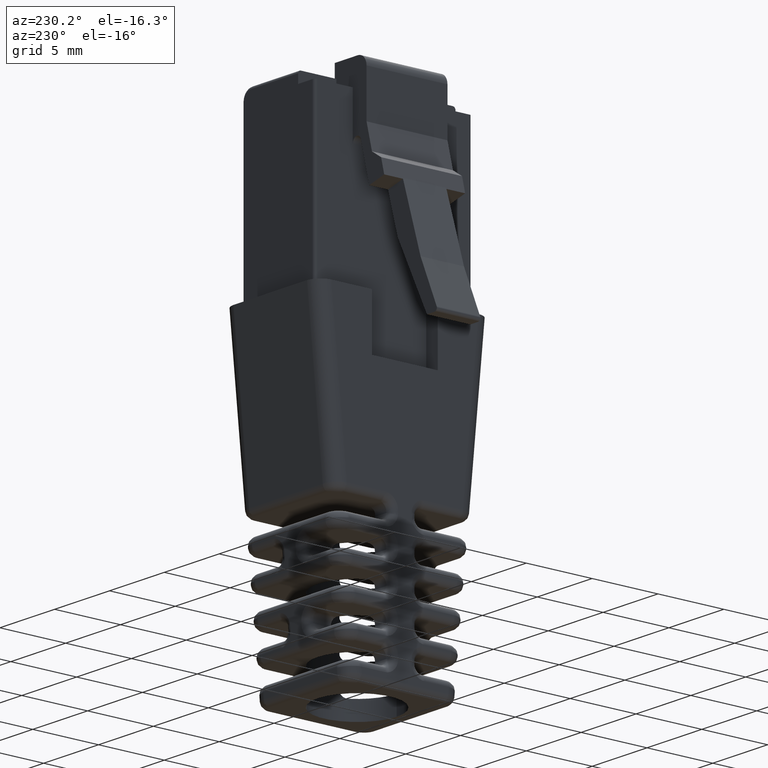
[diagram: clean part render]
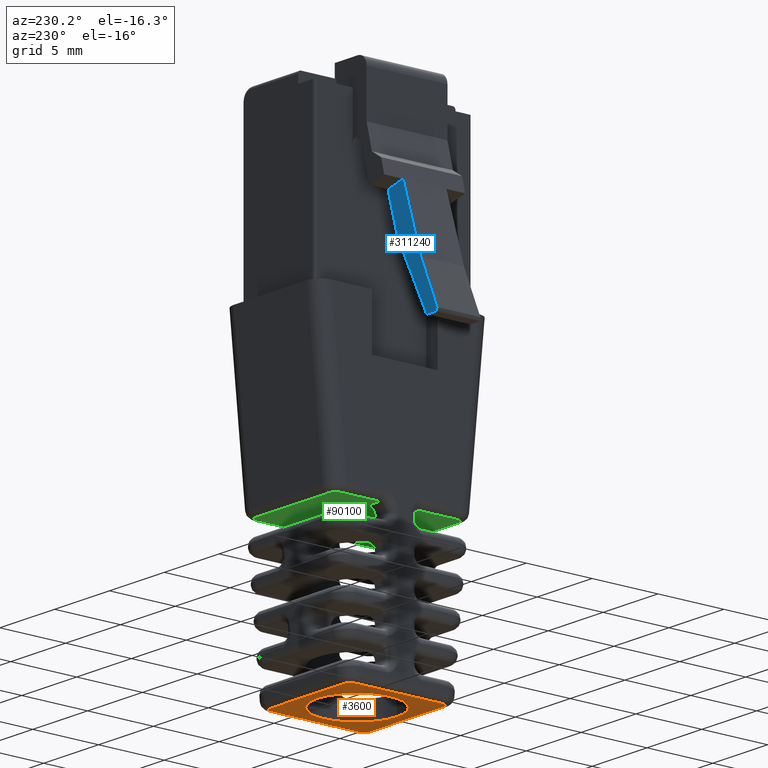
[diagram: same view with three faces highlighted in distinct colors, each labeled with its STEP entity id]
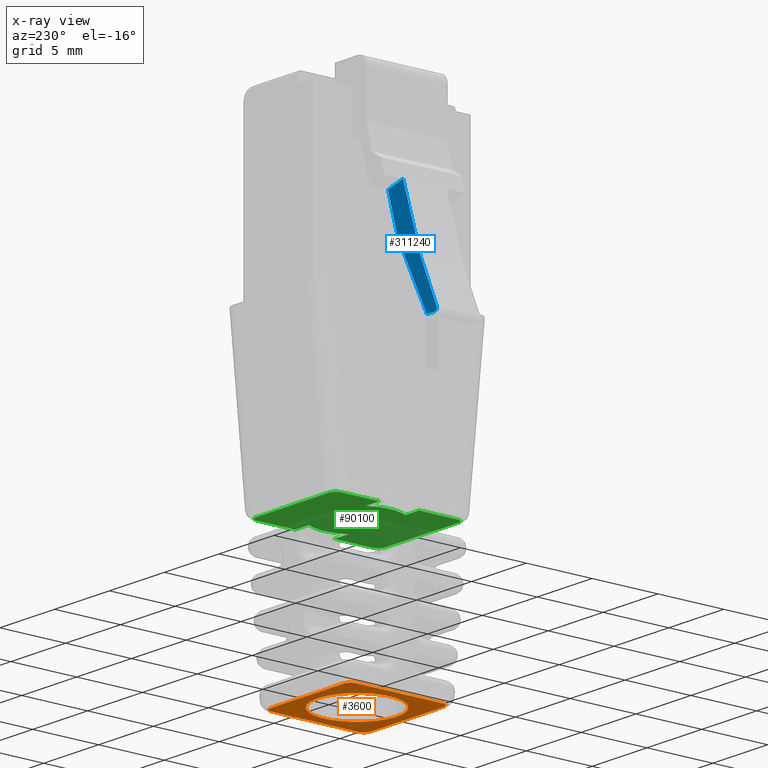
[diagram: x-ray of the same camera — body ghosted, the three highlighted faces saturated]
A machine part, auxiliary view with three faces highlighted in distinct colors.
The next image is the same camera in x-ray (body ghosted, the three faces saturated) — at least one of them is partly hidden behind the body in this view.
Their STEP definitions:

[orange] entity #3600 — the highlighted planar face has unit normal (0, -0, -1).
#2020=CARTESIAN_POINT('',(0.,0.,24.));
#2030=DIRECTION('',(0.,0.,1.));
#2040=DIRECTION('',(1.,0.,0.));
#2050=AXIS2_PLACEMENT_3D('',#2020,#2030,#2040);
#2060=PLANE('',#2050);
#2070=CARTESIAN_POINT('',(11.4281426136379,4.61886962969767,24.));
#2080=DIRECTION('',(0.,0.,1.));
#2090=DIRECTION('',(1.,0.,0.));
#2100=AXIS2_PLACEMENT_3D('',#2070,#2080,#2090);
#2110=CIRCLE('',#2100,3.);
#2120=CARTESIAN_POINT('',(14.4281426136379,4.61886962969767,24.));
#2130=VERTEX_POINT('',#2120);
#2140=CARTESIAN_POINT('',(8.42814261363791,4.61886962969767,24.));
#2150=VERTEX_POINT('',#2140);
#2160=EDGE_CURVE('',#2130,#2150,#2110,.T.);
#2170=ORIENTED_EDGE('',*,*,#2160,.F.);
#2180=EDGE_CURVE('',#2150,#2130,#2110,.T.);
#2190=ORIENTED_EDGE('',*,*,#2180,.F.);
#2200=EDGE_LOOP('',(#2190,#2170));
#2210=FACE_BOUND('',#2200,.T.);
#2220=CARTESIAN_POINT('',(7.63157548086723,0.,24.));
#2230=DIRECTION('',(0.,-1.,0.));
#2240=VECTOR('',#2230,1.);
#2250=LINE('',#2220,#2240);
#2260=CARTESIAN_POINT('',(7.63157548086723,7.96886962969767,24.));
#2270=VERTEX_POINT('',#2260);
#2280=CARTESIAN_POINT('',(7.63157548086723,1.26886962969767,24.));
#2290=VERTEX_POINT('',#2280);
#2300=EDGE_CURVE('',#2270,#2290,#2250,.T.);
#2310=ORIENTED_EDGE('',*,*,#2300,.T.);
#2320=CARTESIAN_POINT('',(8.13396668142988,8.46886962969767,24.));
#2330=CARTESIAN_POINT('',(8.11820719484784,8.46886962941029,24.));
#2340=CARTESIAN_POINT('',(8.10245585365113,8.46813155978695,24.));
#2350=CARTESIAN_POINT('',(8.08155434936782,8.46616850661825,24.));
#2360=CARTESIAN_POINT('',(8.07634860347011,8.4655977968666,24.));
#2370=CARTESIAN_POINT('',(8.02986953187484,8.45976823618118,24.));
#2380=CARTESIAN_POINT('',(7.98938373530583,8.44950476571241,24.));
#2390=CARTESIAN_POINT('',(7.89636692330433,8.41322020862494,24.));
#2400=CARTESIAN_POINT('',(7.84618768787502,8.38280374039244,24.));
#2410=CARTESIAN_POINT('',(7.80235873980915,8.3444764162071,24.));
#2420=CARTESIAN_POINT('',(7.77114986760287,8.31718503424851,24.));
#2430=CARTESIAN_POINT('',(7.74345317593471,8.28613834485792,24.));
#2440=CARTESIAN_POINT('',(7.69635489305031,8.21792343862533,24.));
#2450=CARTESIAN_POINT('',(7.67714194137829,8.18102133303213,24.));
#2460=CARTESIAN_POINT('',(7.64833650826421,8.10343662200296,24.));
#2470=CARTESIAN_POINT('',(7.63882988410064,8.0630724887373,24.));
#2480=CARTESIAN_POINT('',(7.63411982891316,8.01920558856994,24.));
#2490=CARTESIAN_POINT('',(7.63384377563335,8.01641202481174,24.));
#2500=CARTESIAN_POINT('',(7.63224809727464,7.99873842748319,24.));
#2510=CARTESIAN_POINT('',(7.63157547701211,7.98380811320723,24.));
#2520=CARTESIAN_POINT('',(7.63157548086723,7.96886962969767,24.));
#2530=B_SPLINE_CURVE_WITH_KNOTS('',3,(#2320,#2330,#2340,#2350,#2360,
#2370,#2380,#2390,#2400,#2410,#2420,#2430,#2440,#2450,#2460,#2470,#2480,
#2490,#2500,#2510,#2520),.UNSPECIFIED.,.F.,.F.,(4,2,2,2,3,2,2,2,2,4),(0.
,0.0706426140932112,0.0941072492122741,0.2804567932587,0.541420281636003
,0.72724184174419,0.913130795447704,1.0984738306326,1.11107123097296,
1.17812979283743),.UNSPECIFIED.);
#2540=CARTESIAN_POINT('',(8.13396668142988,8.46886962969767,24.));
#2550=VERTEX_POINT('',#2540);
#2560=EDGE_CURVE('',#2550,#2270,#2530,.T.);
#2570=ORIENTED_EDGE('',*,*,#2560,.T.);
#2580=CARTESIAN_POINT('',(0.,8.46886962969767,24.));
#2590=DIRECTION('',(-1.,0.,0.));
#2600=VECTOR('',#2590,1.);
#2610=LINE('',#2580,#2600);
#2620=CARTESIAN_POINT('',(14.722318545846,8.46886962969767,24.));
#2630=VERTEX_POINT('',#2620);
#2640=EDGE_CURVE('',#2630,#2550,#2610,.T.);
#2650=ORIENTED_EDGE('',*,*,#2640,.T.);
#2660=CARTESIAN_POINT('',(15.2247097464086,7.96886962969767,24.));
#2670=CARTESIAN_POINT('',(15.2247097502637,7.98380811320611,24.));
#2680=CARTESIAN_POINT('',(15.2240371300013,7.99873842748094,24.));
#2690=CARTESIAN_POINT('',(15.2224414516424,8.0164120248129,24.));
#2700=CARTESIAN_POINT('',(15.2221653983621,8.01920558857561,24.));
#2710=CARTESIAN_POINT('',(15.2174553431732,8.06307248874739,24.));
#2720=CARTESIAN_POINT('',(15.2079487190089,8.10343662201286,24.));
#2730=CARTESIAN_POINT('',(15.1791432858938,8.18102133303983,24.));
#2740=CARTESIAN_POINT('',(15.159930334222,8.2179234386312,24.));
#2750=CARTESIAN_POINT('',(15.1128320513388,8.28613834486049,24.));
#2760=CARTESIAN_POINT('',(15.0851353596717,8.31718503424965,24.));
#2770=CARTESIAN_POINT('',(15.0539264874667,8.3444764162071,24.));
#2780=CARTESIAN_POINT('',(15.0100975393982,8.38280374039473,24.));
#2790=CARTESIAN_POINT('',(14.9599183039655,8.41322020862856,24.));
#2800=CARTESIAN_POINT('',(14.86690149196,8.44950476571537,24.));
#2810=CARTESIAN_POINT('',(14.8264156953908,8.45976823618331,24.));
#2820=CARTESIAN_POINT('',(14.7799366237754,8.4655977968703,24.));
#2830=CARTESIAN_POINT('',(14.7747308778575,8.46616850662373,24.));
#2840=CARTESIAN_POINT('',(14.7538293735773,8.46813155978917,24.));
#2850=CARTESIAN_POINT('',(14.7380780324043,8.46886962941251,24.));
#2860=CARTESIAN_POINT('',(14.722318545846,8.46886962969767,24.));
#2870=B_SPLINE_CURVE_WITH_KNOTS('',3,(#2660,#2670,#2680,#2690,#2700,
#2710,#2720,#2730,#2740,#2750,#2760,#2770,#2780,#2790,#2800,#2810,#2820,
#2830,#2840,#2850,#2860),.UNSPECIFIED.,.F.,.F.,(4,2,2,2,2,3,2,2,2,4),(0.
,0.0670585618594444,0.0796559622201674,0.264998997405034,
0.450887951100811,0.636709511201264,0.897672999594067,1.0840225436404,
1.10748717885016,1.17812979283741),.UNSPECIFIED.);
#2880=CARTESIAN_POINT('',(15.2247097464086,7.96886962969767,24.));
#2890=VERTEX_POINT('',#2880);
#2900=EDGE_CURVE('',#2890,#2630,#2870,.T.);
#2910=ORIENTED_EDGE('',*,*,#2900,.T.);
#2920=CARTESIAN_POINT('',(15.2247097464086,0.,24.));
#2930=DIRECTION('',(0.,1.,0.));
#2940=VECTOR('',#2930,1.);
#2950=LINE('',#2920,#2940);
#2960=CARTESIAN_POINT('',(15.2247097464086,1.26886962969767,24.));
#2970=VERTEX_POINT('',#2960);
#2980=EDGE_CURVE('',#2970,#2890,#2950,.T.);
#2990=ORIENTED_EDGE('',*,*,#2980,.T.);
#3000=CARTESIAN_POINT('',(14.722318545846,0.768869629697672,24.));
#3010=CARTESIAN_POINT('',(14.738078032428,0.768869629985049,24.));
#3020=CARTESIAN_POINT('',(14.7538293736247,0.769607699608391,24.));
#3030=CARTESIAN_POINT('',(14.7747308779071,0.771570752777011,24.));
#3040=CARTESIAN_POINT('',(14.7799366238039,0.77214146252855,24.));
#3050=CARTESIAN_POINT('',(14.8264156953983,0.777971023213606,24.));
#3060=CARTESIAN_POINT('',(14.8669014919674,0.788234493682162,24.));
#3070=CARTESIAN_POINT('',(14.9599183039699,0.824519050769452,24.));
#3080=CARTESIAN_POINT('',(15.0100975394001,0.854935519002302,24.));
#3090=CARTESIAN_POINT('',(15.0539264874667,0.893262843188242,24.));
#3100=CARTESIAN_POINT('',(15.0851353596726,0.920554225146533,24.));
#3110=CARTESIAN_POINT('',(15.1128320513405,0.951600914536751,24.));
#3120=CARTESIAN_POINT('',(15.1599303342246,1.01981582076848,24.));
#3130=CARTESIAN_POINT('',(15.1791432858965,1.0567179263612,24.));
#3140=CARTESIAN_POINT('',(15.2079487190109,1.13430263738979,24.));
#3150=CARTESIAN_POINT('',(15.2174553431747,1.17466677065541,24.));
#3160=CARTESIAN_POINT('',(15.2221653983625,1.21853367082363,24.));
#3170=CARTESIAN_POINT('',(15.2224414516424,1.22132723458272,24.));
#3180=CARTESIAN_POINT('',(15.2240371300012,1.23900083191216,24.));
#3190=CARTESIAN_POINT('',(15.2247097502637,1.25393114618811,24.));
#3200=CARTESIAN_POINT('',(15.2247097464086,1.26886962969767,24.));
#3210=B_SPLINE_CURVE_WITH_KNOTS('',3,(#3000,#3010,#3020,#3030,#3040,
#3050,#3060,#3070,#3080,#3090,#3100,#3110,#3120,#3130,#3140,#3150,#3160,
#3170,#3180,#3190,#3200),.UNSPECIFIED.,.F.,.F.,(4,2,2,2,3,2,2,2,2,4),(0.
,0.0706426140932039,0.0941072492082089,0.280456793254612,
0.541420281635981,0.727241841742166,0.913130795443683,1.0984738306286,
1.11107123097297,1.17812979283744),.UNSPECIFIED.);
#3220=CARTESIAN_POINT('',(14.722318545846,0.768869629697672,24.));
#3230=VERTEX_POINT('',#3220);
#3240=EDGE_CURVE('',#3230,#2970,#3210,.T.);
#3250=ORIENTED_EDGE('',*,*,#3240,.T.);
#3260=CARTESIAN_POINT('',(0.,0.768869629697672,24.));
#3270=DIRECTION('',(1.,0.,0.));
#3280=VECTOR('',#3270,1.);
#3290=LINE('',#3260,#3280);
#3300=CARTESIAN_POINT('',(8.13396668142988,0.768869629697672,24.));
#3310=VERTEX_POINT('',#3300);
#3320=EDGE_CURVE('',#3310,#3230,#3290,.T.);
#3330=ORIENTED_EDGE('',*,*,#3320,.T.);
#3340=CARTESIAN_POINT('',(7.63157548086723,1.26886962969767,24.));
#3350=CARTESIAN_POINT('',(7.63157547701221,1.25393114618812,24.));
#3360=CARTESIAN_POINT('',(7.63224809727464,1.23900083191216,24.));
#3370=CARTESIAN_POINT('',(7.63384377563365,1.22132723458018,24.));
#3380=CARTESIAN_POINT('',(7.63411982891384,1.21853367081856,24.));
#3390=CARTESIAN_POINT('',(7.6388298841026,1.17466677064786,24.));
#3400=CARTESIAN_POINT('',(7.648336508267,1.13430263738239,24.));
#3410=CARTESIAN_POINT('',(7.6771419413821,1.05671792635544,24.));
#3420=CARTESIAN_POINT('',(7.69635489305388,1.01981582076409,24.));
#3430=CARTESIAN_POINT('',(7.74345317593702,0.951600914534832,24.));
#3440=CARTESIAN_POINT('',(7.77114986760417,0.920554225145688,24.));
#3450=CARTESIAN_POINT('',(7.80235873980915,0.893262843188242,24.));
#3460=CARTESIAN_POINT('',(7.84618768787766,0.854935519000595,24.));
#3470=CARTESIAN_POINT('',(7.89636692331035,0.824519050766756,24.));
#3480=CARTESIAN_POINT('',(7.98938373531586,0.788234493679951,24.));
#3490=CARTESIAN_POINT('',(8.02986953188508,0.777971023212016,24.));
#3500=CARTESIAN_POINT('',(8.07634860350053,0.77214146252504,24.));
#3510=CARTESIAN_POINT('',(8.08155434941836,0.771570752771607,24.));
#3520=CARTESIAN_POINT('',(8.10245585369849,0.769607699606171,24.));
#3530=CARTESIAN_POINT('',(8.1182071948715,0.768869629982834,24.));
#3540=CARTESIAN_POINT('',(8.13396668142988,0.768869629697672,24.));
#3550=B_SPLINE_CURVE_WITH_KNOTS('',3,(#3340,#3350,#3360,#3370,#3380,
#3390,#3400,#3410,#3420,#3430,#3440,#3450,#3460,#3470,#3480,#3490,#3500,
#3510,#3520,#3530,#3540),.UNSPECIFIED.,.F.,.F.,(4,2,2,2,2,3,2,2,2,4),(0.
,0.0670585618644696,0.0796559622202935,0.264998997405162,
0.450887951100861,0.636709511201236,0.897672999594169,1.0840225436405,
1.10748717885012,1.17812979283737),.UNSPECIFIED.);
#3560=EDGE_CURVE('',#2290,#3310,#3550,.T.);
#3570=ORIENTED_EDGE('',*,*,#3560,.T.);
#3580=EDGE_LOOP('',(#3570,#3330,#3250,#2990,#2910,#2650,#2570,#2310));
#3590=FACE_OUTER_BOUND('',#3580,.T.);
#3600=ADVANCED_FACE('',(#2210,#3590),#2060,.T.);

[blue] entity #311240 — the highlighted planar face has unit normal (0, 1, -0).
#91810=CARTESIAN_POINT('',(9.77814261363792,9.41948341125614,
-6.1132655648186));
#91820=VERTEX_POINT('',#91810);
#94440=CARTESIAN_POINT('',(9.77814261363792,10.7832516832711,
-6.46269707794216));
#94450=VERTEX_POINT('',#94440);
#94480=CARTESIAN_POINT('',(9.77814261363792,0.,-3.69975851323226));
#94490=DIRECTION('',(2.77555756156289E-17,-0.968707030006701,
0.248206949974406));
#94500=VECTOR('',#94490,1.);
#94510=LINE('',#94480,#94500);
#94520=EDGE_CURVE('',#94450,#91820,#94510,.T.);
#95060=CARTESIAN_POINT('',(9.77814261363792,12.9589180243398,
2.26741098415549));
#95070=VERTEX_POINT('',#95060);
#95120=CARTESIAN_POINT('',(9.77814261363792,7.91886962969769,
2.26741098415548));
#95130=DIRECTION('',(-5.43882616294955E-31,-1.,-3.08086889333481E-15));
#95140=VECTOR('',#95130,1.);
#95150=LINE('',#95120,#95140);
#95160=CARTESIAN_POINT('',(9.77814261363792,13.6768546173051,
2.26741098415549));
#95170=VERTEX_POINT('',#95160);
#95180=EDGE_CURVE('',#95170,#95070,#95150,.T.);
#308860=CARTESIAN_POINT('',(9.77814261363792,10.7678500107672,
-6.52280703227636));
#308870=VERTEX_POINT('',#308860);
#308900=CARTESIAN_POINT('',(9.77814261363792,12.4391561834309,0.));
#308910=DIRECTION('',(-1.66533453693773E-16,-0.248206949974407,
-0.9687070300067));
#308920=VECTOR('',#308910,1.);
#308930=LINE('',#308900,#308920);
#308940=EDGE_CURVE('',#94450,#308870,#308930,.T.);
#309460=CARTESIAN_POINT('',(9.77814261363792,12.3829969358845,
-1.39895543259676));
#309470=VERTEX_POINT('',#309460);
#309500=CARTESIAN_POINT('',(9.77814261363792,12.8239774212436,0.));
#309510=DIRECTION('',(1.38777878078145E-16,0.30063853720936,
0.953738155860725));
#309520=VECTOR('',#309510,1.);
#309530=LINE('',#309500,#309520);
#309540=EDGE_CURVE('',#308870,#309470,#309530,.T.);
#310150=CARTESIAN_POINT('',(9.77814261363792,10.2947303367128,
-3.03102969797912));
#310160=VERTEX_POINT('',#310150);
#310210=CARTESIAN_POINT('',(9.77814261363792,11.1554365054605,0.));
#310220=DIRECTION('',(-1.38777878078145E-16,-0.273164960542195,
-0.96196720543477));
#310230=VECTOR('',#310220,1.);
#310240=LINE('',#310210,#310230);
#310250=EDGE_CURVE('',#310160,#91820,#310240,.T.);
#310910=CARTESIAN_POINT('',(9.77814261363792,9.66166016875783,
-6.17531730231217));
#310920=DIRECTION('',(-1.,3.08148791101957E-32,1.66533453693773E-16));
#310930=DIRECTION('',(-1.66533453693773E-16,-3.88578058618805E-16,-1.));
#310940=AXIS2_PLACEMENT_3D('',#310910,#310920,#310930);
#310950=PLANE('',#310940);
#310960=ORIENTED_EDGE('',*,*,#308940,.F.);
#310970=ORIENTED_EDGE('',*,*,#309540,.F.);
#310980=CARTESIAN_POINT('',(9.77814261363792,13.9822959379824,
2.26741098415549));
#310990=DIRECTION('',(1.52643165472155E-16,0.399824750524463,
0.916591604188065));
#311000=VECTOR('',#310990,1000.);
#311010=LINE('',#310980,#311000);
#311020=CARTESIAN_POINT('',(9.77814261363792,13.8601729381427,
1.9874460340506));
#311030=VERTEX_POINT('',#311020);
#311040=EDGE_CURVE('',#309470,#311030,#311010,.T.);
#311050=ORIENTED_EDGE('',*,*,#311040,.F.);
#311060=CARTESIAN_POINT('',(9.77814261363792,13.6768546173051,
2.06741098415549));
#311070=DIRECTION('',(-1.,3.08148791101958E-32,1.66533453693773E-16));
#311080=DIRECTION('',(-1.66533453693773E-16,-3.88578058618805E-16,-1.));
#311090=AXIS2_PLACEMENT_3D('',#311060,#311070,#311080);
#311100=CIRCLE('',#311090,0.200000000000001);
#311110=EDGE_CURVE('',#95170,#311030,#311100,.T.);
#311120=ORIENTED_EDGE('',*,*,#311110,.T.);
#311130=ORIENTED_EDGE('',*,*,#95180,.F.);
#311140=CARTESIAN_POINT('',(9.77814261363792,5.18757919409741,
-13.1879482625064));
#311150=DIRECTION('',(-1.48783552689997E-16,-0.449231473961312,
-0.893415403271371));
#311160=VECTOR('',#311150,1.);
#311170=LINE('',#311140,#311160);
#311180=EDGE_CURVE('',#95070,#310160,#311170,.T.);
#311190=ORIENTED_EDGE('',*,*,#311180,.F.);
#311200=ORIENTED_EDGE('',*,*,#310250,.F.);
#311210=ORIENTED_EDGE('',*,*,#94520,.T.);
#311220=EDGE_LOOP('',(#311210,#311200,#311190,#311130,#311120,#311050,
#310970,#310960));
#311230=FACE_OUTER_BOUND('',#311220,.T.);
#311240=ADVANCED_FACE('',(#311230),#310950,.T.);

[green] entity #90100 — the highlighted planar face has unit normal (0, -0, -1).
#51930=CARTESIAN_POINT('',(12.9281426136379,7.21694584105098,12.6));
#51940=VERTEX_POINT('',#51930);
#51970=CARTESIAN_POINT('',(11.4281426136379,4.61886962969767,12.6));
#51980=DIRECTION('',(0.,0.,1.));
#51990=DIRECTION('',(1.,0.,0.));
#52000=AXIS2_PLACEMENT_3D('',#51970,#51980,#51990);
#52010=CIRCLE('',#52000,3.);
#52020=CARTESIAN_POINT('',(9.92814261363791,7.21694584105099,12.6));
#52030=VERTEX_POINT('',#52020);
#52040=EDGE_CURVE('',#51940,#52030,#52010,.T.);
#88160=CARTESIAN_POINT('',(3.82814261363791,8.96886962969767,12.6));
#88170=DIRECTION('',(0.,0.,1.));
#88180=DIRECTION('',(-1.,0.,0.));
#88190=AXIS2_PLACEMENT_3D('',#88160,#88170,#88180);
#88200=PLANE('',#88190);
#88210=CARTESIAN_POINT('',(16.3409597464086,0.,12.6));
#88220=DIRECTION('',(0.,-1.,0.));
#88230=VECTOR('',#88220,1.);
#88240=LINE('',#88210,#88230);
#88250=CARTESIAN_POINT('',(16.3409597464086,7.96886962969767,12.6));
#88260=VERTEX_POINT('',#88250);
#88270=CARTESIAN_POINT('',(16.3409597464086,1.26886962969767,12.6));
#88280=VERTEX_POINT('',#88270);
#88290=EDGE_CURVE('',#88260,#88280,#88240,.T.);
#88300=ORIENTED_EDGE('',*,*,#88290,.F.);
#88310=CARTESIAN_POINT('',(15.838568545846,0.768869629697672,12.6));
#88320=CARTESIAN_POINT('',(15.854328032428,0.768869629985049,12.6));
#88330=CARTESIAN_POINT('',(15.8700793736247,0.769607699608391,12.6));
#88340=CARTESIAN_POINT('',(15.8909808779066,0.771570752776963,12.6));
#88350=CARTESIAN_POINT('',(15.8961866238029,0.772141462528437,12.6));
#88360=CARTESIAN_POINT('',(15.9426656953968,0.777971023213287,12.6));
#88370=CARTESIAN_POINT('',(15.9831514919659,0.788234493681717,12.6));
#88380=CARTESIAN_POINT('',(16.076168303969,0.82451905076891,12.6));
#88390=CARTESIAN_POINT('',(16.1263475393997,0.854935519001959,12.6));
#88400=CARTESIAN_POINT('',(16.1701764874667,0.893262843188241,12.6));
#88410=CARTESIAN_POINT('',(16.2013853596724,0.920554225146362,12.6));
#88420=CARTESIAN_POINT('',(16.2290820513402,0.951600914536363,12.6));
#88430=CARTESIAN_POINT('',(16.2761803342241,1.01981582076759,12.6));
#88440=CARTESIAN_POINT('',(16.295393285896,1.05671792636004,12.6));
#88450=CARTESIAN_POINT('',(16.3241987190105,1.1343026373883,12.6));
#88460=CARTESIAN_POINT('',(16.3337053431744,1.17466677065389,12.6));
#88470=CARTESIAN_POINT('',(16.3384153983624,1.21853367082261,12.6));
#88480=CARTESIAN_POINT('',(16.3386914516423,1.22132723458221,12.6));
#88490=CARTESIAN_POINT('',(16.3402871300012,1.23900083191216,12.6));
#88500=CARTESIAN_POINT('',(16.3409597502637,1.25393114618811,12.6));
#88510=CARTESIAN_POINT('',(16.3409597464086,1.26886962969767,12.6));
#88520=B_SPLINE_CURVE_WITH_KNOTS('',3,(#88310,#88320,#88330,#88340,
#88350,#88360,#88370,#88380,#88390,#88400,#88410,#88420,#88430,#88440,
#88450,#88460,#88470,#88480,#88490,#88500,#88510),.UNSPECIFIED.,.F.,.F.,
(4,2,2,2,3,2,2,2,2,4),(0.,0.0706426140931964,0.0941072492058925,
0.280456793252275,0.541420281635966,0.727241841740971,0.913130795441297,
1.09847383062619,1.11107123097287,1.17812979283735),.UNSPECIFIED.);
#88530=CARTESIAN_POINT('',(15.838568545846,0.768869629697672,12.6));
#88540=VERTEX_POINT('',#88530);
#88550=EDGE_CURVE('',#88540,#88280,#88520,.T.);
#88560=ORIENTED_EDGE('',*,*,#88550,.T.);
#88570=CARTESIAN_POINT('',(0.,0.768869629697672,12.6));
#88580=DIRECTION('',(-1.,0.,0.));
#88590=VECTOR('',#88580,1.);
#88600=LINE('',#88570,#88590);
#88610=CARTESIAN_POINT('',(12.9281426136379,0.768869629697672,12.6));
#88620=VERTEX_POINT('',#88610);
#88630=EDGE_CURVE('',#88540,#88620,#88600,.T.);
#88640=ORIENTED_EDGE('',*,*,#88630,.F.);
#88650=CARTESIAN_POINT('',(12.9281426136379,0.,12.6));
#88660=DIRECTION('',(0.,-1.,0.));
#88670=VECTOR('',#88660,1.);
#88680=LINE('',#88650,#88670);
#88690=CARTESIAN_POINT('',(12.9281426136379,2.02079341834437,12.6));
#88700=VERTEX_POINT('',#88690);
#88710=EDGE_CURVE('',#88700,#88620,#88680,.T.);
#88720=ORIENTED_EDGE('',*,*,#88710,.T.);
#88730=CARTESIAN_POINT('',(9.92814261363792,2.02079341834436,12.6));
#88740=VERTEX_POINT('',#88730);
#88750=EDGE_CURVE('',#88740,#88700,#52010,.T.);
#88760=ORIENTED_EDGE('',*,*,#88750,.T.);
#88770=CARTESIAN_POINT('',(9.92814261363791,0.,12.6));
#88780=DIRECTION('',(0.,-1.,0.));
#88790=VECTOR('',#88780,1.);
#88800=LINE('',#88770,#88790);
#88810=CARTESIAN_POINT('',(9.92814261363791,0.768869629697672,12.6));
#88820=VERTEX_POINT('',#88810);
#88830=EDGE_CURVE('',#88740,#88820,#88800,.T.);
#88840=ORIENTED_EDGE('',*,*,#88830,.F.);
#88850=CARTESIAN_POINT('',(0.,0.768869629697672,12.6));
#88860=DIRECTION('',(-1.,0.,0.));
#88870=VECTOR('',#88860,1.);
#88880=LINE('',#88850,#88870);
#88890=CARTESIAN_POINT('',(7.01771668142988,0.768869629697672,12.6));
#88900=VERTEX_POINT('',#88890);
#88910=EDGE_CURVE('',#88820,#88900,#88880,.T.);
#88920=ORIENTED_EDGE('',*,*,#88910,.F.);
#88930=CARTESIAN_POINT('',(6.51532548086723,1.26886962969767,12.6));
#88940=CARTESIAN_POINT('',(6.51532547701221,1.25393114618812,12.6));
#88950=CARTESIAN_POINT('',(6.51599809727465,1.23900083191216,12.6));
#88960=CARTESIAN_POINT('',(6.51759377563351,1.2213272345818,12.6));
#88970=CARTESIAN_POINT('',(6.51786982891352,1.21853367082179,12.6));
#88980=CARTESIAN_POINT('',(6.52257988410168,1.17466677065267,12.6));
#88990=CARTESIAN_POINT('',(6.53208650826568,1.13430263738711,12.6));
#89000=CARTESIAN_POINT('',(6.5608919413803,1.05671792635911,12.6));
#89010=CARTESIAN_POINT('',(6.58010489305219,1.01981582076689,12.6));
#89020=CARTESIAN_POINT('',(6.62720317593593,0.951600914536054,12.6));
#89030=CARTESIAN_POINT('',(6.65489986760356,0.920554225146226,12.6));
#89040=CARTESIAN_POINT('',(6.68610873980915,0.893262843188241,12.6));
#89050=CARTESIAN_POINT('',(6.72993768787642,0.854935519001683,12.6));
#89060=CARTESIAN_POINT('',(6.78011692330751,0.824519050768475,12.6));
#89070=CARTESIAN_POINT('',(6.87313373531113,0.78823449368136,12.6));
#89080=CARTESIAN_POINT('',(6.91361953188025,0.777971023213029,12.6));
#89090=CARTESIAN_POINT('',(6.96009860349728,0.772141462525396,12.6));
#89100=CARTESIAN_POINT('',(6.96530434941674,0.771570752771759,12.6));
#89110=CARTESIAN_POINT('',(6.98620585369849,0.76960769960617,12.6));
#89120=CARTESIAN_POINT('',(7.0019571948715,0.768869629982833,12.6));
#89130=CARTESIAN_POINT('',(7.01771668142988,0.768869629697672,12.6));
#89140=B_SPLINE_CURVE_WITH_KNOTS('',3,(#88930,#88940,#88950,#88960,
#88970,#88980,#88990,#89000,#89010,#89020,#89030,#89040,#89050,#89060,
#89070,#89080,#89090,#89100,#89110,#89120,#89130),.UNSPECIFIED.,.F.,.F.,
(4,2,2,2,2,3,2,2,2,4),(0.,0.0670585618644695,0.0796559622129953,
0.264998997397881,0.450887951097273,0.636709511201338,0.8976729995869,
1.08402254363328,1.10748717885025,1.17812979283752),.UNSPECIFIED.);
#89150=CARTESIAN_POINT('',(6.51532548086723,1.26886962969767,12.6));
#89160=VERTEX_POINT('',#89150);
#89170=EDGE_CURVE('',#89160,#88900,#89140,.T.);
#89180=ORIENTED_EDGE('',*,*,#89170,.T.);
#89190=CARTESIAN_POINT('',(6.51532548086723,0.,12.6));
#89200=DIRECTION('',(0.,1.,0.));
#89210=VECTOR('',#89200,1.);
#89220=LINE('',#89190,#89210);
#89230=CARTESIAN_POINT('',(6.51532548086723,7.96886962969767,12.6));
#89240=VERTEX_POINT('',#89230);
#89250=EDGE_CURVE('',#89160,#89240,#89220,.T.);
#89260=ORIENTED_EDGE('',*,*,#89250,.F.);
#89270=CARTESIAN_POINT('',(7.01771668142988,8.46886962969767,12.6));
#89280=CARTESIAN_POINT('',(7.00195719484783,8.46886962941029,12.6));
#89290=CARTESIAN_POINT('',(6.98620585365113,8.46813155978695,12.6));
#89300=CARTESIAN_POINT('',(6.96530434936997,8.46616850661845,12.6));
#89310=CARTESIAN_POINT('',(6.96009860347442,8.46559779686707,12.6));
#89320=CARTESIAN_POINT('',(6.91361953188123,8.45976823618252,12.6));
#89330=CARTESIAN_POINT('',(6.87313373531209,8.44950476571427,12.6));
#89340=CARTESIAN_POINT('',(6.78011692330809,8.41322020862722,12.6));
#89350=CARTESIAN_POINT('',(6.72993768787667,8.38280374039388,12.6));
#89360=CARTESIAN_POINT('',(6.68610873980915,8.3444764162071,12.6));
#89370=CARTESIAN_POINT('',(6.65489986760368,8.31718503424923,12.6));
#89380=CARTESIAN_POINT('',(6.62720317593615,8.28613834485954,12.6));
#89390=CARTESIAN_POINT('',(6.58010489305253,8.21792343862902,12.6));
#89400=CARTESIAN_POINT('',(6.56089194138067,8.18102133303697,12.6));
#89410=CARTESIAN_POINT('',(6.53208650826595,8.10343662200918,12.6));
#89420=CARTESIAN_POINT('',(6.52257988410186,8.06307248874364,12.6));
#89430=CARTESIAN_POINT('',(6.51786982891359,8.0192055885742,12.6));
#89440=CARTESIAN_POINT('',(6.51759377563354,8.01641202481387,12.6));
#89450=CARTESIAN_POINT('',(6.51599809727464,7.99873842748318,12.6));
#89460=CARTESIAN_POINT('',(6.51532547701211,7.98380811320723,12.6));
#89470=CARTESIAN_POINT('',(6.51532548086723,7.96886962969767,12.6));
#89480=B_SPLINE_CURVE_WITH_KNOTS('',3,(#89270,#89280,#89290,#89300,
#89310,#89320,#89330,#89340,#89350,#89360,#89370,#89380,#89390,#89400,
#89410,#89420,#89430,#89440,#89450,#89460,#89470),.UNSPECIFIED.,.F.,.F.,
(4,2,2,2,3,2,2,2,2,4),(0.,0.0706426140931843,0.0941072492025263,
0.280456793248892,0.541420281635945,0.727241841739272,0.913130795437929,
1.09847383062282,1.11107123097281,1.17812979283728),.UNSPECIFIED.);
#89490=CARTESIAN_POINT('',(7.01771668142988,8.46886962969767,12.6));
#89500=VERTEX_POINT('',#89490);
#89510=EDGE_CURVE('',#89500,#89240,#89480,.T.);
#89520=ORIENTED_EDGE('',*,*,#89510,.T.);
#89530=CARTESIAN_POINT('',(0.,8.46886962969767,12.6));
#89540=DIRECTION('',(1.,0.,0.));
#89550=VECTOR('',#89540,1.);
#89560=LINE('',#89530,#89550);
#89570=CARTESIAN_POINT('',(9.92814261363791,8.46886962969767,12.6));
#89580=VERTEX_POINT('',#89570);
#89590=EDGE_CURVE('',#89500,#89580,#89560,.T.);
#89600=ORIENTED_EDGE('',*,*,#89590,.F.);
#89610=CARTESIAN_POINT('',(9.92814261363791,0.,12.6));
#89620=DIRECTION('',(0.,-1.,0.));
#89630=VECTOR('',#89620,1.);
#89640=LINE('',#89610,#89630);
#89650=EDGE_CURVE('',#89580,#52030,#89640,.T.);
#89660=ORIENTED_EDGE('',*,*,#89650,.F.);
#89670=ORIENTED_EDGE('',*,*,#52040,.T.);
#89680=CARTESIAN_POINT('',(12.9281426136379,0.,12.6));
#89690=DIRECTION('',(0.,-1.,0.));
#89700=VECTOR('',#89690,1.);
#89710=LINE('',#89680,#89700);
#89720=CARTESIAN_POINT('',(12.9281426136379,8.46886962969767,12.6));
#89730=VERTEX_POINT('',#89720);
#89740=EDGE_CURVE('',#89730,#51940,#89710,.T.);
#89750=ORIENTED_EDGE('',*,*,#89740,.T.);
#89760=CARTESIAN_POINT('',(0.,8.46886962969767,12.6));
#89770=DIRECTION('',(1.,0.,0.));
#89780=VECTOR('',#89770,1.);
#89790=LINE('',#89760,#89780);
#89800=CARTESIAN_POINT('',(15.838568545846,8.46886962969767,12.6));
#89810=VERTEX_POINT('',#89800);
#89820=EDGE_CURVE('',#89730,#89810,#89790,.T.);
#89830=ORIENTED_EDGE('',*,*,#89820,.F.);
#89840=CARTESIAN_POINT('',(16.3409597464086,7.96886962969767,12.6));
#89850=CARTESIAN_POINT('',(16.3409597502637,7.9838081132061,12.6));
#89860=CARTESIAN_POINT('',(16.3402871300013,7.99873842748093,12.6));
#89870=CARTESIAN_POINT('',(16.3386914516421,8.01641202481583,12.6));
#89880=CARTESIAN_POINT('',(16.3384153983615,8.01920558858147,12.6));
#89890=CARTESIAN_POINT('',(16.3337053431716,8.06307248875611,12.6));
#89900=CARTESIAN_POINT('',(16.3241987190065,8.10343662202142,12.6));
#89910=CARTESIAN_POINT('',(16.2953932858905,8.18102133304649,12.6));
#89920=CARTESIAN_POINT('',(16.2761803342189,8.21792343863628,12.6));
#89930=CARTESIAN_POINT('',(16.2290820513368,8.28613834486271,12.6));
#89940=CARTESIAN_POINT('',(16.2013853596705,8.31718503425062,12.6));
#89950=CARTESIAN_POINT('',(16.1701764874667,8.3444764162071,12.6));
#89960=CARTESIAN_POINT('',(16.1263475393959,8.3828037403967,12.6));
#89970=CARTESIAN_POINT('',(16.0761683039604,8.41322020863167,12.6));
#89980=CARTESIAN_POINT('',(15.9831514919515,8.44950476571793,12.6));
#89990=CARTESIAN_POINT('',(15.9426656953821,8.45976823618515,12.6));
#90000=CARTESIAN_POINT('',(15.8961866237695,8.46559779687094,12.6));
#90010=CARTESIAN_POINT('',(15.8909808778545,8.46616850662401,12.6));
#90020=CARTESIAN_POINT('',(15.8700793735773,8.46813155978917,12.6));
#90030=CARTESIAN_POINT('',(15.8543280324043,8.46886962941251,12.6));
#90040=CARTESIAN_POINT('',(15.838568545846,8.46886962969767,12.6));
#90050=B_SPLINE_CURVE_WITH_KNOTS('',3,(#89840,#89850,#89860,#89870,
#89880,#89890,#89900,#89910,#89920,#89930,#89940,#89950,#89960,#89970,
#89980,#89990,#90000,#90010,#90020,#90030,#90040),.UNSPECIFIED.,.F.,.F.,
(4,2,2,2,2,3,2,2,2,4),(0.,0.0670585618594478,0.079655962233411,
0.264998997418242,0.450887951107301,0.636709511201039,0.897672999607207,
1.08402254365346,1.10748717884988,1.17812979283711),.UNSPECIFIED.);
#90060=EDGE_CURVE('',#88260,#89810,#90050,.T.);
#90070=ORIENTED_EDGE('',*,*,#90060,.T.);
#90080=EDGE_LOOP('',(#90070,#89830,#89750,#89670,#89660,#89600,#89520,
#89260,#89180,#88920,#88840,#88760,#88720,#88640,#88560,#88300));
#90090=FACE_OUTER_BOUND('',#90080,.T.);
#90100=ADVANCED_FACE('',(#90090),#88200,.T.);